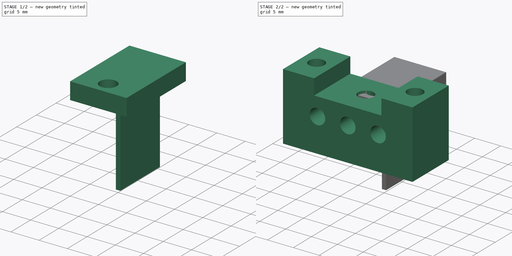
[diagram: build sequence overview — one tinted view per stage of 2, left to right]
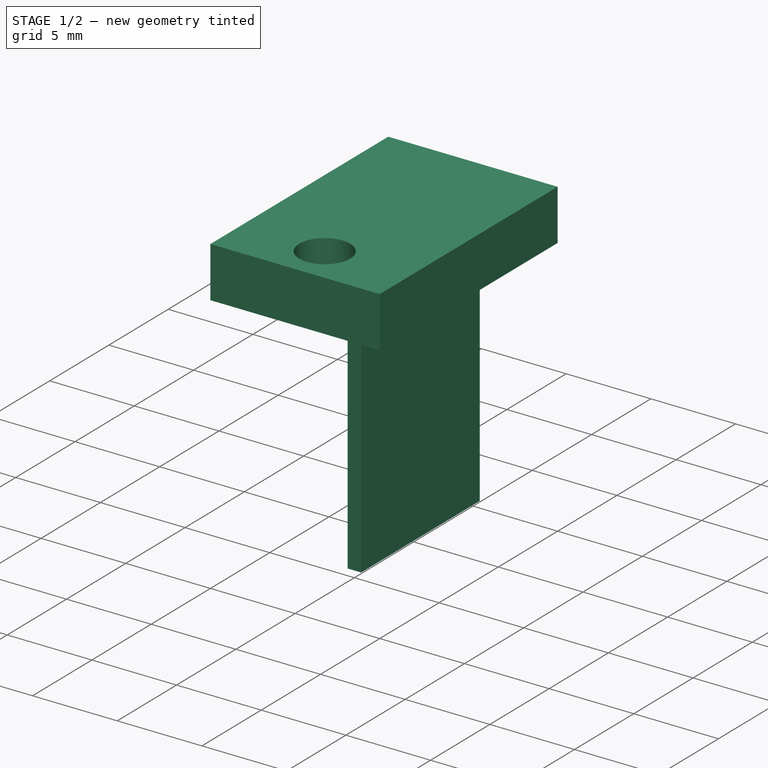
[diagram: stage 1 of 2 — iso view after this stage's code; geometry added in this stage tinted green]
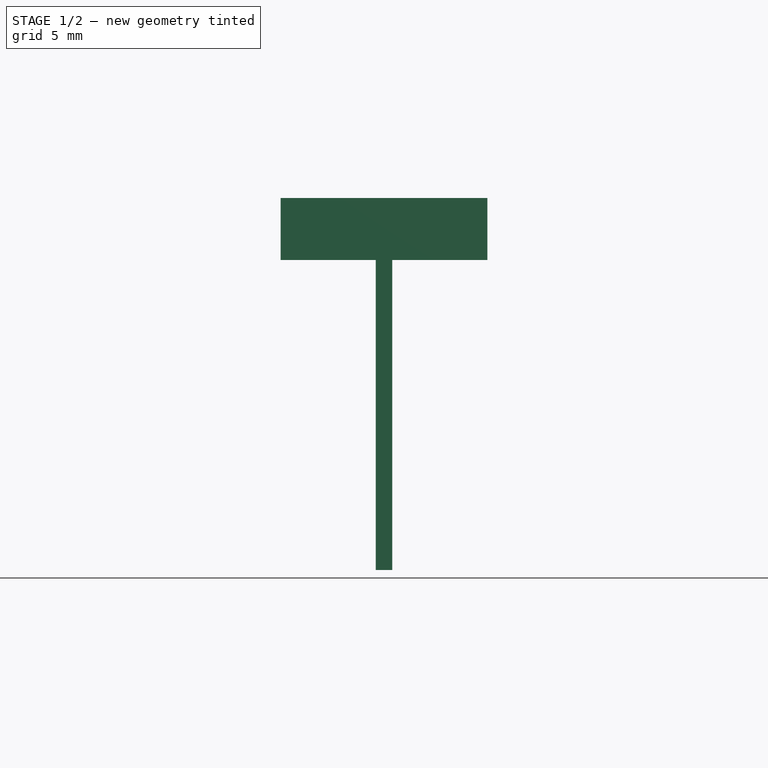
[diagram: stage 1 of 2 — front view after this stage's code; geometry added in this stage tinted green]
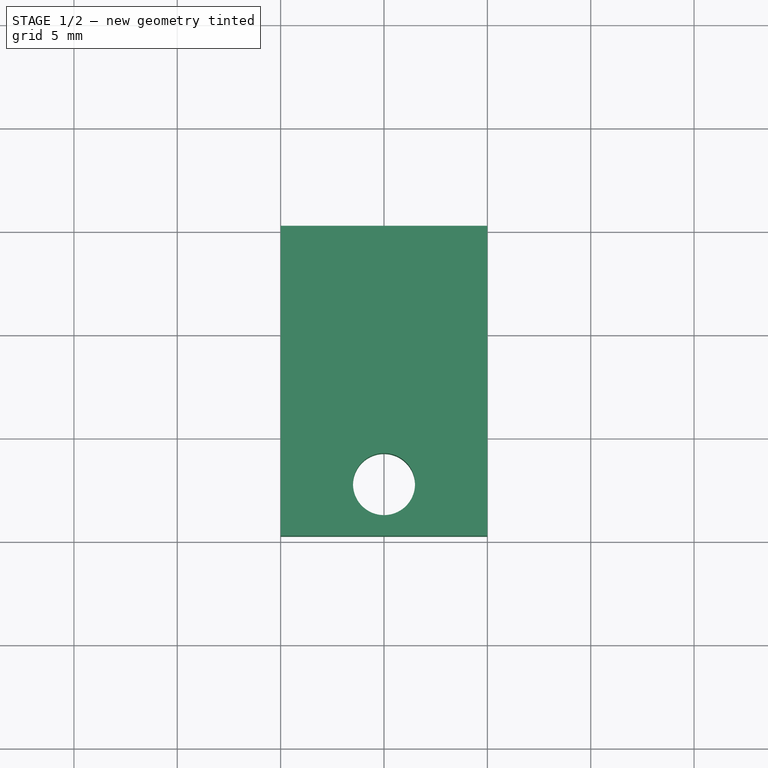
[diagram: stage 1 of 2 — top view after this stage's code; geometry added in this stage tinted green]
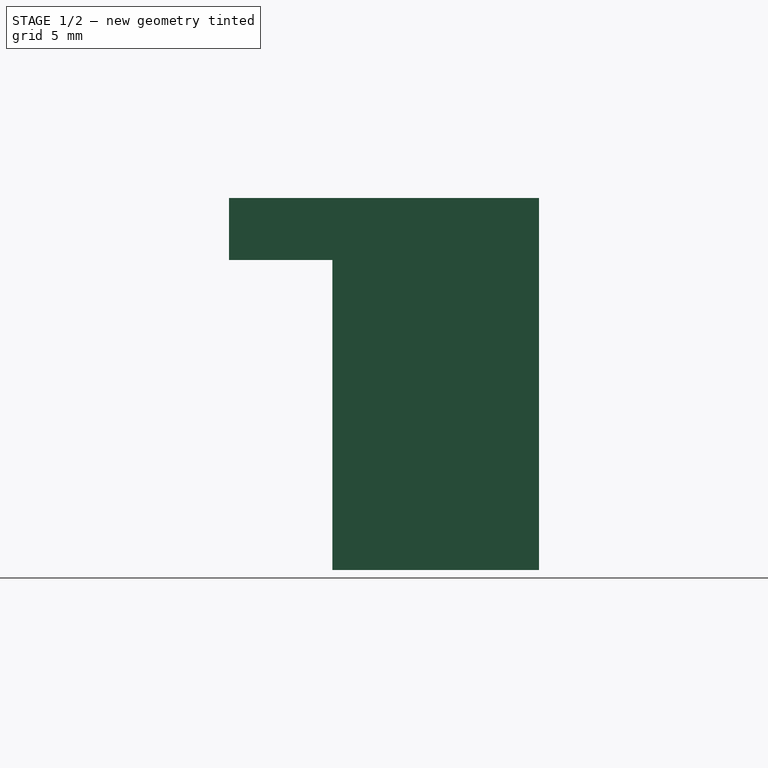
[diagram: stage 1 of 2 — right view after this stage's code; geometry added in this stage tinted green]
FCSTD DOCUMENT  (FreeCAD 0.19R)
Label: optobarrier_holder
License: All rights reserved
LicenseURL: http://en.wikipedia.org/wiki/All_rights_reserved
objects: Sketcher::SketchObject×4, PartDesign::Pad×3, PartDesign::Body×2, PartDesign::Pocket×1
note: 14 computed .brp shape members not serialized (recipe doc carries the construction recipe); baked Part::Feature solids carry a one-line shape summary decoded from their .brp

FEATURE [PartDesign::Body] Body  label="optobarrier_holder"
  Group = -> [Sketch,Pad,Sketch001,Pocket]
  Origin = -> Origin
  Tip = -> Pocket
FEATURE [Sketcher::SketchObject] Sketch002
  FullyConstrained = false
  MapMode = 5
  Support = -> [XY_Plane001]
  sketch-geometry (5):
    g0: LineSegment StartX=5 StartY=10 StartZ=0 EndX=-5 EndY=10 EndZ=0
    g1: LineSegment StartX=-5 StartY=10 StartZ=0 EndX=-5 EndY=-5 EndZ=0
    g2: LineSegment StartX=-5 StartY=-5 StartZ=0 EndX=5 EndY=-5 EndZ=0
    g3: LineSegment StartX=5 StartY=-5 StartZ=0 EndX=5 EndY=10 EndZ=0
    g4: Circle CenterX=0 CenterY=-2.5 CenterZ=0 NormalX=0 NormalY=0 NormalZ=1 AngleXU=0 Radius=1.5
  constraints (13):
    c: Coincident(g0,g1)
    c: Coincident(g1,g2)
    c: Coincident(g2,g3)
    c: Coincident(g3,g0)
    c: Horizontal(g0)
    c: Horizontal(g2)
    c: Vertical(g1)
    c: Vertical(g3)
    c: Distance(g1) = 15
    c: Distance(g2) = 10
    c: PointOnObject(g4,g-2)
    c: Diameter(g4) = 3
    c: DistanceY(g4) = -2.5
FEATURE [PartDesign::Pad] Pad001
  Direction = (1,1,1)
  Length = 3
  Length2 = 100
  Profile = -> Sketch002
  Type = 0
FEATURE [Sketcher::SketchObject] Sketch003
  ExternalGeometry = -> [Pad001]
  FullyConstrained = true
  MapMode = 5
  Placement = pos=(0,0,0) rot=(1,0,0;3.14159rad)
  Support = -> [Pad001]
  sketch-geometry (4):
    g0: LineSegment StartX=-0.4 StartY=0 StartZ=0 EndX=0.4 EndY=0 EndZ=0
    g1: LineSegment StartX=0.4 StartY=0 StartZ=0 EndX=0.4 EndY=-10 EndZ=0
    g2: LineSegment StartX=0.4 StartY=-10 StartZ=0 EndX=-0.4 EndY=-10 EndZ=0
    g3: LineSegment StartX=-0.4 StartY=-10 StartZ=0 EndX=-0.4 EndY=0 EndZ=0
  constraints (11):
    c: Coincident(g0,g1)
    c: Coincident(g1,g2)
    c: Coincident(g2,g3)
    c: Coincident(g3,g0)
    c: Horizontal(g2)
    c: Vertical(g1)
    c: Vertical(g3)
    c: PointOnObject(g0,g-1)
    c: PointOnObject(g1,g-3)
    c: Symmetric(g0,g0,g-2)
    c: Distance(g2) = 0.8
FEATURE [PartDesign::Pad] Pad002
  BaseFeature = -> Pad001
  Direction = (1,1,1)
  Length = 15
  Length2 = 100
  Profile = -> Sketch003
  Type = 0
FEATURE [PartDesign::Body] Body001  label="optobarrier_plate"
  Group = -> [Sketch002,Pad001,Sketch003,Pad002]
  Origin = -> Origin001
  Tip = -> Pad002
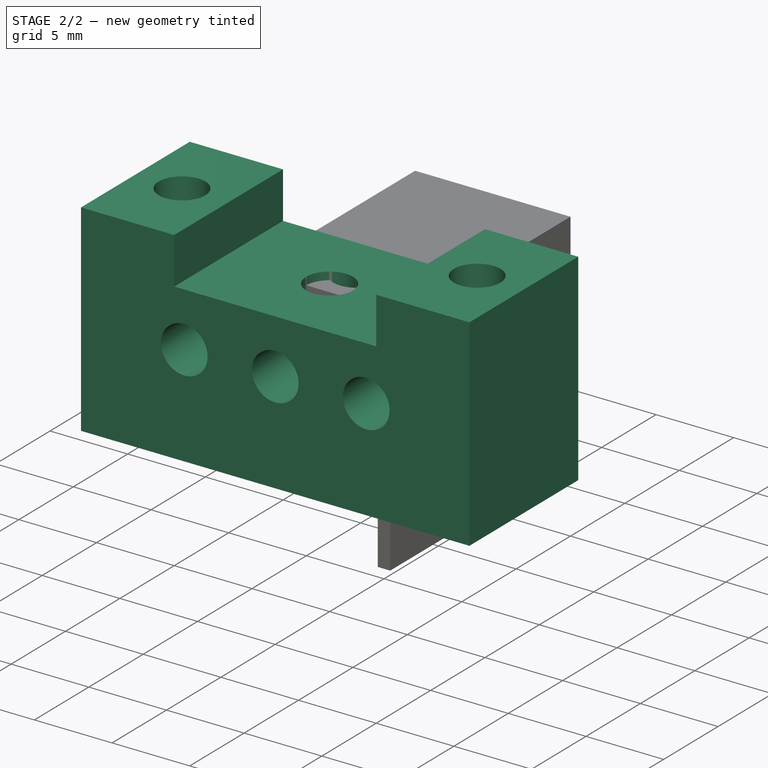
[diagram: stage 2 of 2 — iso view after this stage's code; geometry added in this stage tinted green]
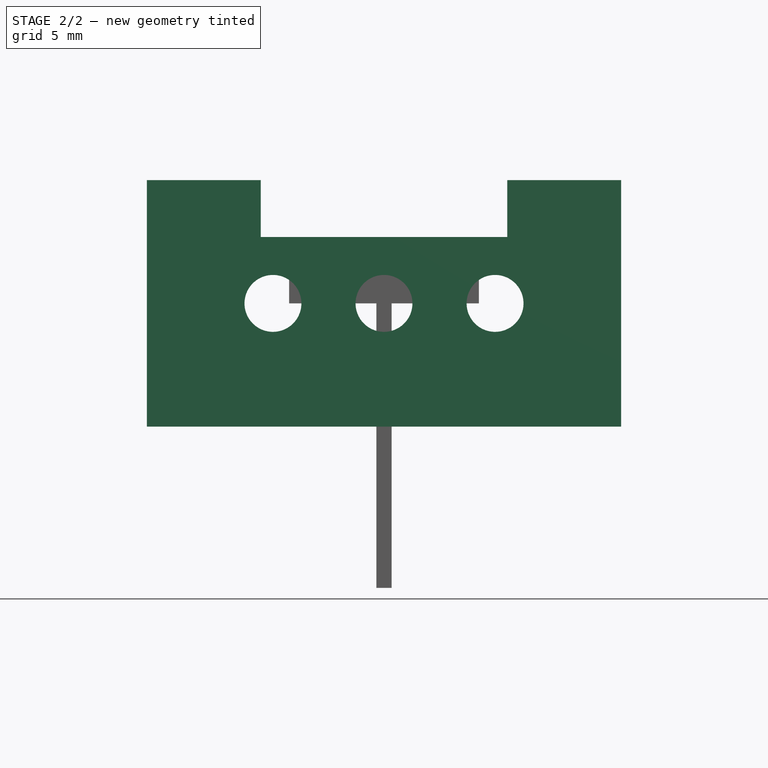
[diagram: stage 2 of 2 — front view after this stage's code; geometry added in this stage tinted green]
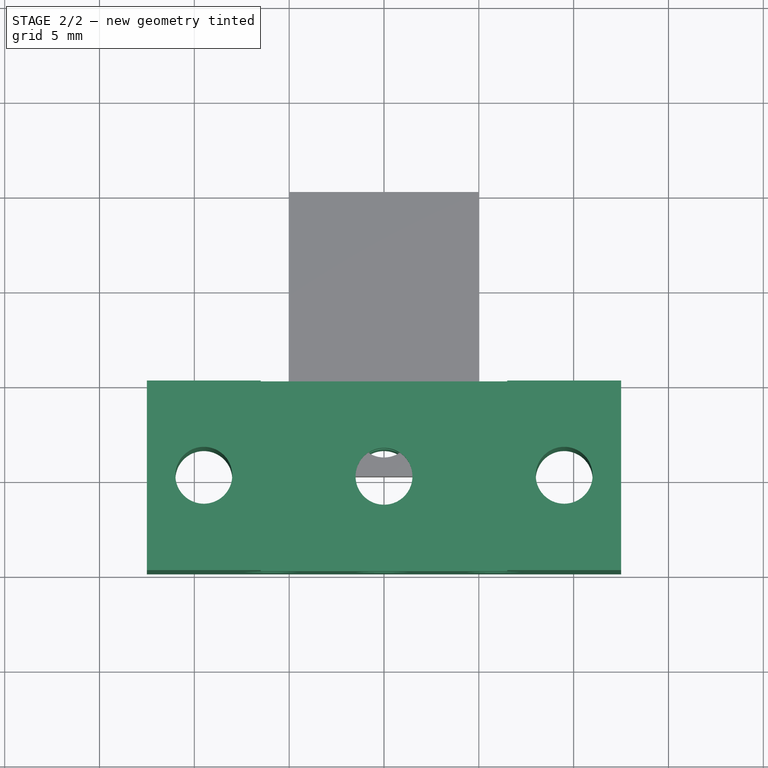
[diagram: stage 2 of 2 — top view after this stage's code; geometry added in this stage tinted green]
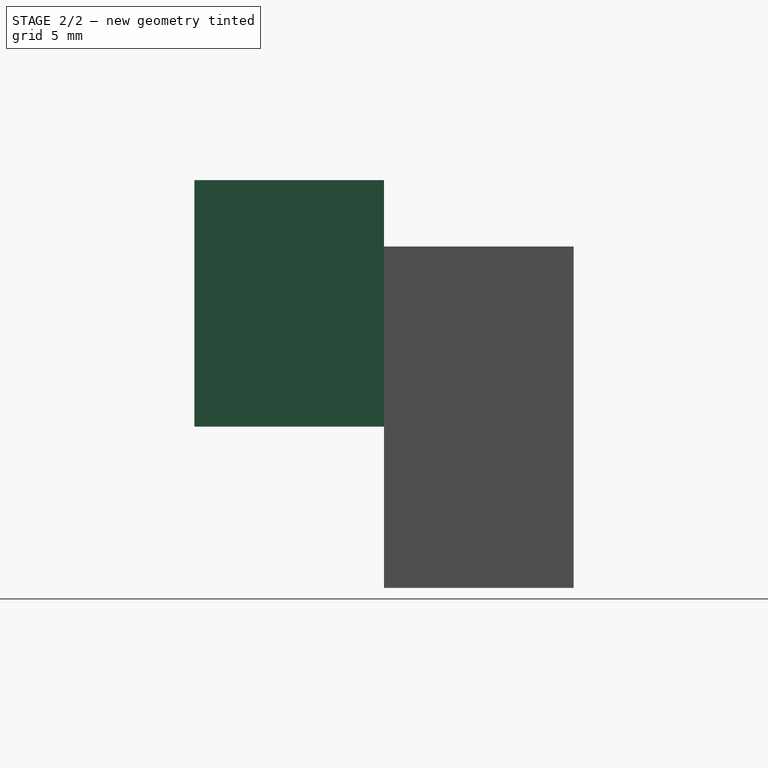
[diagram: stage 2 of 2 — right view after this stage's code; geometry added in this stage tinted green]
FEATURE [Sketcher::SketchObject] Sketch
  FullyConstrained = false
  MapMode = 5
  Placement = pos=(0,0,0) rot=(1,0,0;1.5708rad)
  Support = -> [XZ_Plane]
  sketch-geometry (11):
    g0: LineSegment StartX=-12.5 StartY=6.5 StartZ=0 EndX=-12.5 EndY=-6.5 EndZ=0
    g1: LineSegment StartX=-12.5 StartY=-6.5 StartZ=0 EndX=12.5 EndY=-6.5 EndZ=0
    g2: LineSegment StartX=12.5 StartY=-6.5 StartZ=0 EndX=12.5 EndY=6.5 EndZ=0
    g3: LineSegment StartX=12.5 StartY=6.5 StartZ=0 EndX=6.5 EndY=6.5 EndZ=0
    g4: LineSegment StartX=6.5 StartY=6.5 StartZ=0 EndX=6.5 EndY=3.5 EndZ=0
    g5: LineSegment StartX=6.5 StartY=3.5 StartZ=0 EndX=-6.5 EndY=3.5 EndZ=0
    g6: LineSegment StartX=-6.5 StartY=3.5 StartZ=0 EndX=-6.5 EndY=6.5 EndZ=0
    g7: LineSegment StartX=-6.5 StartY=6.5 StartZ=0 EndX=-12.5 EndY=6.5 EndZ=0
    g8: Circle CenterX=-5.85553 CenterY=0 CenterZ=0 NormalX=0 NormalY=0 NormalZ=1 AngleXU=0 Radius=1.5
    g9: Circle CenterX=0 CenterY=0 CenterZ=0 NormalX=0 NormalY=0 NormalZ=1 AngleXU=0 Radius=1.5
    g10: Circle CenterX=5.85553 CenterY=0 CenterZ=0 NormalX=0 NormalY=0 NormalZ=1 AngleXU=0 Radius=1.5
  constraints (26):
    c: Coincident(g1,g0)
    c: Horizontal(g3)
    c: Coincident(g4,g3)
    c: Coincident(g7,g0)
    c: Symmetric(g1,g0,g-2)
    c: Symmetric(g3,g2,g-1)
    c: Symmetric(g7,g3,g-2)
    c: Symmetric(g5,g4,g-2)
    c: Coincident(g2,g1)
    c: Coincident(g7,g6)
    c: Parallel(g6,g4)
    c: Distance(g1) = 25
    c: Coincident(g3,g2)
    c: Coincident(g4,g5)
    c: Distance(g2) = 13
    c: Parallel(g2,g0)
    c: Parallel(g1,g7)
    c: DistanceY(g0,g5) = 10
    c: PointOnObject(g8,g-1)
    c: Coincident(g9,g-1)
    c: Symmetric(g8,g10,g-2)
    c: Diameter(g8) = 3
    c: Equal(g8,g9)
    c: Equal(g8,g10)
    c: Coincident(g6,g5)
    c: Distance(g7) = 6
FEATURE [PartDesign::Pad] Pad
  Direction = (1,1,1)
  Length = 10
  Length2 = 100
  Placement = pos=(0,0,0) rot=(1,0,0;1.5708rad)
  Profile = -> Sketch
  Type = 0
FEATURE [Sketcher::SketchObject] Sketch001
  FullyConstrained = true
  MapMode = 5
  Placement = pos=(0,-4.3e-15,-6.5) rot=(1,0,0;3.14159rad)
  Support = -> [Pad]
  sketch-geometry (4):
    g0: LineSegment StartX=-9.5 StartY=5 StartZ=0 EndX=9.5 EndY=5 EndZ=0
    g1: Circle CenterX=-9.5 CenterY=5 CenterZ=0 NormalX=0 NormalY=0 NormalZ=1 AngleXU=0 Radius=1.5
    g2: Circle CenterX=0 CenterY=5 CenterZ=0 NormalX=0 NormalY=0 NormalZ=1 AngleXU=0 Radius=1.5
    g3: Circle CenterX=9.5 CenterY=5 CenterZ=0 NormalX=0 NormalY=0 NormalZ=1 AngleXU=0 Radius=1.5
  constraints (10):
    c: Symmetric(g0,g0,g-2)
    c: DistanceY(g-1,g0) = 5
    c: Coincident(g1,g0)
    c: Coincident(g3,g0)
    c: PointOnObject(g2,g-2)
    c: PointOnObject(g2,g0)
    c: Diameter(g1) = 3
    c: Equal(g1,g2)
    c: Equal(g1,g3)
    c: Distance(g0) = 19
FEATURE [PartDesign::Pocket] Pocket
  BaseFeature = -> Pad
  Length = 5
  Length2 = 100
  Placement = pos=(0,0,0) rot=(1,0,0;1.5708rad)
  Profile = -> Sketch001
  Type = 1
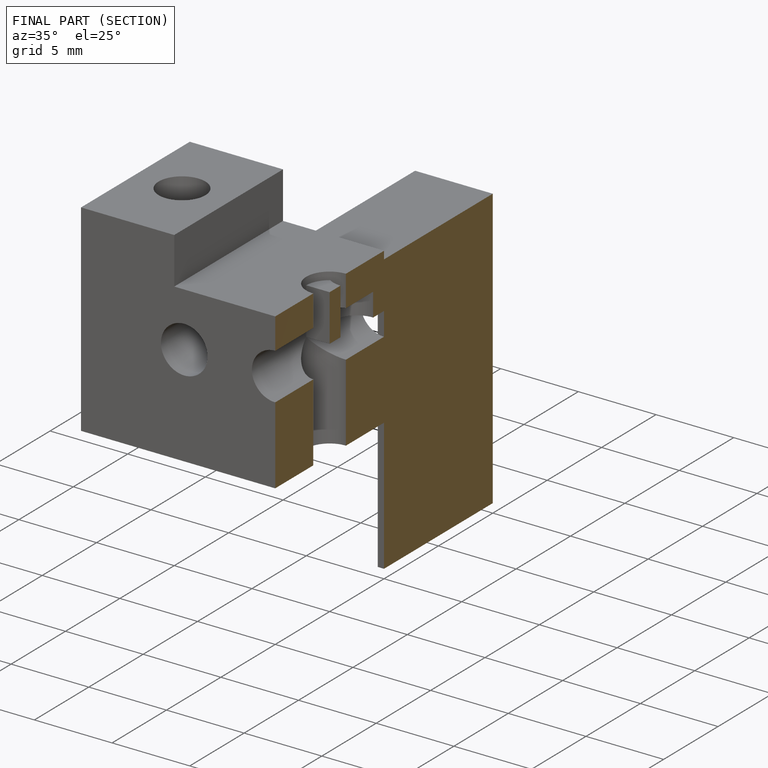
[diagram: finished part — half-section view (interior)]
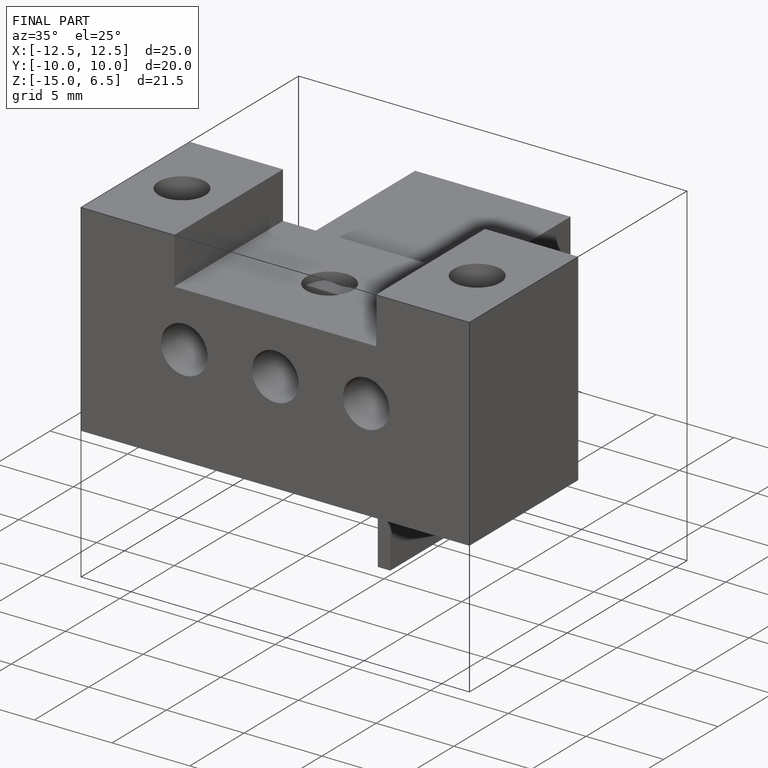
[diagram: finished part — iso view with bounding-box wireframe]
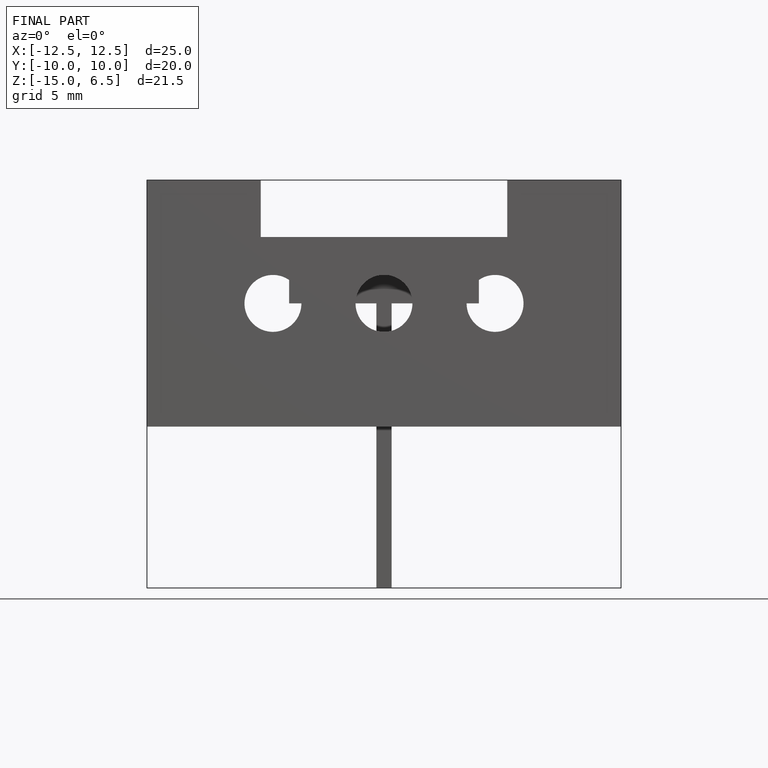
[diagram: finished part — front view with bounding-box wireframe]
